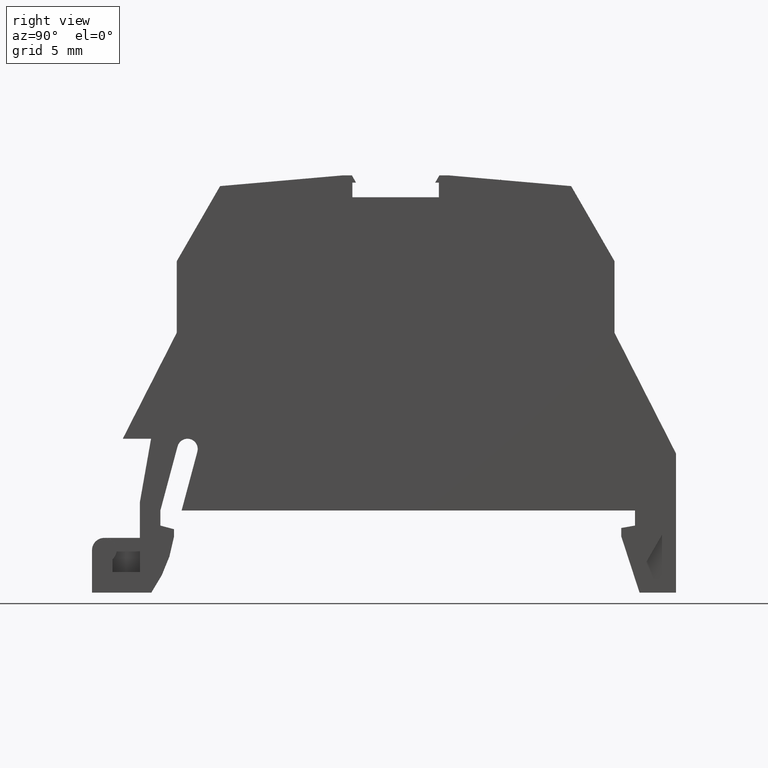
[diagram: clean part render]
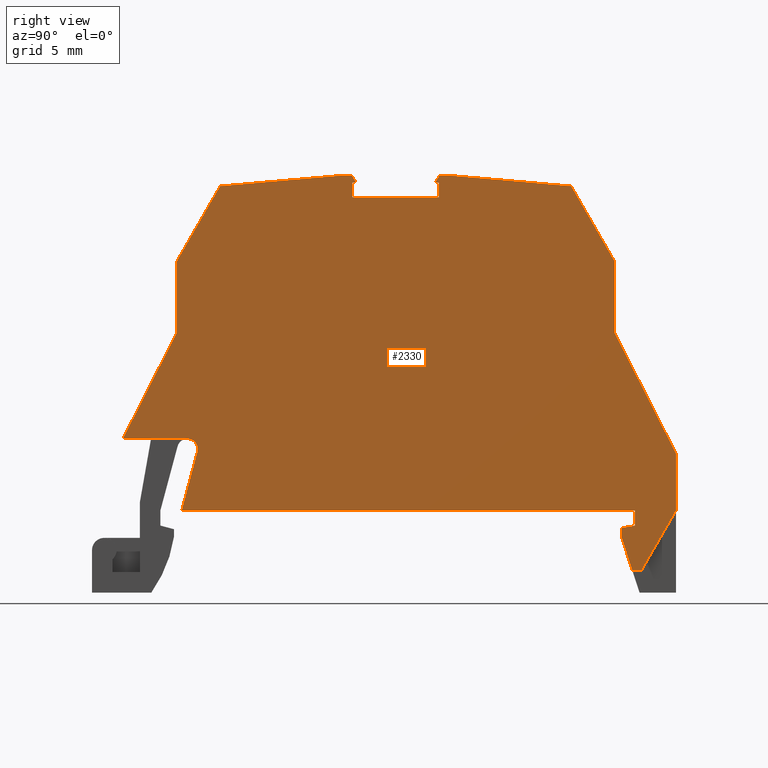
[diagram: same view with one face highlighted and labeled with its STEP entity id]
A machine part, right view. The second image highlights one B-rep face of the part: STEP entity #2330.
In plain terms, the highlighted planar face has unit normal (1, -0, 0).
Its self-contained STEP definition (entity closure, byte-faithful):
#10=CARTESIAN_POINT('',(62.0155351510105,116.281341430532,
-0.400000000000006));
#20=DIRECTION('',(1.1890976636385E-18,1.52197560301105E-18,-1.));
#30=DIRECTION('',(-0.500000000001421,-0.866025403783619,
-1.9126183679674E-18));
#40=AXIS2_PLACEMENT_3D('',#10,#20,#30);
#50=PLANE('',#40);
#60=CARTESIAN_POINT('',(58.5437800777709,117.723944849771,
-0.400000000000008));
#70=DIRECTION('',(-0.544639035014093,0.838670567946031,
-4.85003940823581E-17));
#80=VECTOR('',#70,1.);
#90=LINE('',#60,#80);
#100=CARTESIAN_POINT('',(71.8348388227303,97.2575091563567,
-0.400000000000007));
#110=VERTEX_POINT('',#100);
#120=CARTESIAN_POINT('',(66.4363213230057,105.570497110753,
-0.400000000000008));
#130=VERTEX_POINT('',#120);
#140=EDGE_CURVE('',#110,#130,#90,.T.);
#150=ORIENTED_EDGE('',*,*,#140,.T.);
#160=CARTESIAN_POINT('',(79.6226566744918,92.7612104232403,
-0.400000000000007));
#170=DIRECTION('',(-0.866025403784337,0.500000000000177,
-5.44332648143389E-17));
#180=VECTOR('',#170,1.);
#190=LINE('',#160,#180);
#200=CARTESIAN_POINT('',(75.4446515722179,95.1733827937149,
-0.400000000017126));
#210=VERTEX_POINT('',#200);
#220=EDGE_CURVE('',#210,#110,#190,.T.);
#230=ORIENTED_EDGE('',*,*,#220,.T.);
#240=CARTESIAN_POINT('',(79.6226566744953,95.1733827937145,
-0.400000000000009));
#250=DIRECTION('',(1.,-1.03694830499875E-13,4.71405901402262E-17));
#260=VECTOR('',#250,1.);
#270=LINE('',#240,#260);
#280=CARTESIAN_POINT('',(80.5253339410894,95.1733827937144,
-0.400000000000009));
#290=VERTEX_POINT('',#280);
#300=EDGE_CURVE('',#210,#290,#270,.T.);
#310=ORIENTED_EDGE('',*,*,#300,.F.);
#320=CARTESIAN_POINT('',(93.5449070145398,117.723944849781,
-0.400000000000009));
#330=DIRECTION('',(0.500000000000091,0.866025403784387,
1.36226417570353E-28));
#340=VECTOR('',#330,1.);
#350=LINE('',#320,#340);
#360=CARTESIAN_POINT('',(80.8490137285799,95.7340126310308,
-0.400000000015457));
#370=VERTEX_POINT('',#360);
#380=EDGE_CURVE('',#290,#370,#350,.T.);
#390=ORIENTED_EDGE('',*,*,#380,.F.);
#400=CARTESIAN_POINT('',(61.0491898250008,117.723944849771,
-0.400000000000008));
#410=DIRECTION('',(-0.669130606358673,0.743144825477562,
-5.17691112048493E-17));
#420=VECTOR('',#410,1.);
#430=LINE('',#400,#420);
#440=CARTESIAN_POINT('',(79.090099839409,97.6874844088518,
-0.400000000000007));
#450=VERTEX_POINT('',#440);
#460=EDGE_CURVE('',#370,#450,#430,.T.);
#470=ORIENTED_EDGE('',*,*,#460,.F.);
#480=CARTESIAN_POINT('',(131.695003508284,67.3160291149172,
-0.400000000000004));
#490=DIRECTION('',(-0.866025403784331,0.500000000000187,
-5.44332648143389E-17));
#500=VECTOR('',#490,1.);
#510=LINE('',#480,#500);
#520=CARTESIAN_POINT('',(78.5499831610476,97.9993209184977,
-0.400000000000007));
#530=VERTEX_POINT('',#520);
#540=EDGE_CURVE('',#450,#530,#510,.T.);
#550=ORIENTED_EDGE('',*,*,#540,.F.);
#560=CARTESIAN_POINT('',(103.988118869212,128.315310537588,
-0.400000000000007));
#570=DIRECTION('',(-0.642787609686713,-0.766044443118832,
-9.45223723962128E-18));
#580=VECTOR('',#570,1.);
#590=LINE('',#560,#580);
#600=CARTESIAN_POINT('',(77.8972795163813,97.2214590050677,
-0.400000000000007));
#610=VERTEX_POINT('',#600);
#620=EDGE_CURVE('',#530,#610,#590,.T.);
#630=ORIENTED_EDGE('',*,*,#620,.F.);
#640=CARTESIAN_POINT('',(131.195003508284,66.4500037111336,
-0.400000000000004));
#650=DIRECTION('',(-0.866025403784337,0.500000000000177,
-5.44332648143389E-17));
#660=VECTOR('',#650,1.);
#670=LINE('',#640,#660);
#680=CARTESIAN_POINT('',(76.9446515722186,97.7714590050678,
-0.400000000000007));
#690=VERTEX_POINT('',#680);
#700=EDGE_CURVE('',#610,#690,#670,.T.);
#710=ORIENTED_EDGE('',*,*,#700,.F.);
#720=CARTESIAN_POINT('',(96.9313940747672,132.389512497262,
-0.400000000000007));
#730=DIRECTION('',(0.500000000000177,0.866025403784337,
1.50981898055093E-28));
#740=VECTOR('',#730,1.);
#750=LINE('',#720,#740);
#760=CARTESIAN_POINT('',(93.518194436917,126.477677308132,
-0.400000000000007));
#770=VERTEX_POINT('',#760);
#780=EDGE_CURVE('',#690,#770,#750,.T.);
#790=ORIENTED_EDGE('',*,*,#780,.F.);
#800=CARTESIAN_POINT('',(156.161105024771,109.692560004568,
-0.400000000000004));
#810=DIRECTION('',(-0.965925826289015,0.258819045102719,
-5.2578496293441E-17));
#820=VECTOR('',#810,1.);
#830=LINE('',#800,#820);
#840=CARTESIAN_POINT('',(89.2123087207439,127.631435908483,
-0.400000000000007));
#850=VERTEX_POINT('',#840);
#860=EDGE_CURVE('',#770,#850,#830,.T.);
#870=ORIENTED_EDGE('',*,*,#860,.F.);
#880=CARTESIAN_POINT('',(89.406423004571,128.355880278199,
-0.400000000000007));
#890=DIRECTION('',(-4.71405901402872E-17,2.72166324069553E-17,1.));
#900=DIRECTION('',(0.500000000000371,0.866025403784225,
1.63141030512244E-28));
#910=AXIS2_PLACEMENT_3D('',#880,#890,#900);
#920=CIRCLE('',#910,0.75);
#930=CARTESIAN_POINT('',(88.7908518453532,128.784333482108,
-0.400000000000009));
#940=VERTEX_POINT('',#930);
#950=EDGE_CURVE('',#940,#850,#920,.T.);
#960=ORIENTED_EDGE('',*,*,#950,.T.);
#970=CARTESIAN_POINT('',(90.3624947582234,131.506498858555,
-0.400000000000007));
#980=DIRECTION('',(0.5,0.866025403784439,1.3984408437789E-28));
#990=VECTOR('',#980,1.);
#1000=LINE('',#970,#990);
#1010=CARTESIAN_POINT('',(91.125425338593,132.827933386403,
-0.400000000000007));
#1020=VERTEX_POINT('',#1010);
#1030=EDGE_CURVE('',#940,#1020,#1000,.T.);
#1040=ORIENTED_EDGE('',*,*,#1030,.F.);
#1050=CARTESIAN_POINT('',(167.215997517429,128.840195474044,
-0.400000000000004));
#1060=DIRECTION('',(-0.998629534754513,0.0523359562441171,
-4.85003940825416E-17));
#1070=VECTOR('',#1060,1.);
#1080=LINE('',#1050,#1070);
#1090=CARTESIAN_POINT('',(82.4363213230552,133.283310031826,
-0.400000000000008));
#1100=VERTEX_POINT('',#1090);
#1110=EDGE_CURVE('',#1020,#1100,#1080,.T.);
#1120=ORIENTED_EDGE('',*,*,#1110,.F.);
#1130=CARTESIAN_POINT('',(79.6226566744847,134.907780074089,
-0.40000000000001));
#1140=DIRECTION('',(0.866025403784273,-0.500000000000287,
5.44332648143562E-17));
#1150=VECTOR('',#1140,1.);
#1160=LINE('',#1130,#1150);
#1170=CARTESIAN_POINT('',(77.9035663599237,135.900297329964,
-0.400000000000006));
#1180=VERTEX_POINT('',#1170);
#1190=EDGE_CURVE('',#1180,#1100,#1160,.T.);
#1200=ORIENTED_EDGE('',*,*,#1190,.T.);
#1210=CARTESIAN_POINT('',(79.6226566744921,135.900297329964,
-0.400000000000005));
#1220=DIRECTION('',(-1.,-4.34152713779667E-13,-1.55628921478194E-16));
#1230=VECTOR('',#1220,1.);
#1240=LINE('',#1210,#1230);
#1250=CARTESIAN_POINT('',(71.5706800120637,135.900297329961,
-0.400000000000007));
#1260=VERTEX_POINT('',#1250);
#1270=EDGE_CURVE('',#1180,#1260,#1240,.T.);
#1280=ORIENTED_EDGE('',*,*,#1270,.F.);
#1290=CARTESIAN_POINT('',(58.843460988277,117.723944849772,
-0.400000000000007));
#1300=DIRECTION('',(0.573576436351071,0.819152044288975,
1.17737077065184E-48));
#1310=VECTOR('',#1300,1.);
#1320=LINE('',#1290,#1310);
#1330=CARTESIAN_POINT('',(66.4270291794981,128.554402646084,
-0.400000000000007));
#1340=VERTEX_POINT('',#1330);
#1350=EDGE_CURVE('',#1340,#1260,#1320,.T.);
#1360=ORIENTED_EDGE('',*,*,#1350,.T.);
#1370=CARTESIAN_POINT('',(60.1740614553684,117.723944849772,
-0.400000000000006));
#1380=DIRECTION('',(0.499999999999921,0.866025403784484,
-5.55111512312578E-17));
#1390=VECTOR('',#1380,1.);
#1400=LINE('',#1370,#1390);
#1410=CARTESIAN_POINT('',(66.0751231902687,127.944883593222,
-0.400000000000007));
#1420=VERTEX_POINT('',#1410);
#1430=EDGE_CURVE('',#1420,#1340,#1400,.T.);
#1440=ORIENTED_EDGE('',*,*,#1430,.T.);
#1450=CARTESIAN_POINT('',(71.9761849252626,117.723944849775,
-0.40000000000001));
#1460=DIRECTION('',(0.500000000005994,-0.866025403780978,
4.71405901402813E-17));
#1470=VECTOR('',#1460,1.);
#1480=LINE('',#1450,#1470);
#1490=CARTESIAN_POINT('',(66.3811188329434,127.414883593223,
-0.40000000000001));
#1500=VERTEX_POINT('',#1490);
#1510=EDGE_CURVE('',#1420,#1500,#1480,.T.);
#1520=ORIENTED_EDGE('',*,*,#1510,.F.);
#1530=CARTESIAN_POINT('',(60.7860527407171,117.723944849772,
-0.40000000000001));
#1540=DIRECTION('',(0.499999999999651,0.866025403784641,
1.08576226544775E-28));
#1550=VECTOR('',#1540,1.);
#1560=LINE('',#1530,#1550);
#1570=CARTESIAN_POINT('',(66.5172726435095,127.650708910768,
-0.39999999999997));
#1580=VERTEX_POINT('',#1570);
#1590=EDGE_CURVE('',#1500,#1580,#1560,.T.);
#1600=ORIENTED_EDGE('',*,*,#1590,.F.);
#1610=CARTESIAN_POINT('',(79.6226566744921,120.084311912645,
-0.399999999999967));
#1620=DIRECTION('',(0.866025403784394,-0.500000000000078,
1.94289029309402E-16));
#1630=VECTOR('',#1620,1.);
#1640=LINE('',#1610,#1630);
#1650=CARTESIAN_POINT('',(67.4439198255584,127.115708910768,
-0.39999999999997));
#1660=VERTEX_POINT('',#1650);
#1670=EDGE_CURVE('',#1580,#1660,#1640,.T.);
#1680=ORIENTED_EDGE('',*,*,#1670,.F.);
#1690=CARTESIAN_POINT('',(62.0215823167739,117.723944849772,
-0.40000000000001));
#1700=DIRECTION('',(-0.500000000000234,-0.866025403784304,
-1.45258258637552E-28));
#1710=VECTOR('',#1700,1.);
#1720=LINE('',#1690,#1710);
#1730=CARTESIAN_POINT('',(64.2814198255548,121.638098231828,
-0.399999999999966));
#1740=VERTEX_POINT('',#1730);
#1750=EDGE_CURVE('',#1660,#1740,#1720,.T.);
#1760=ORIENTED_EDGE('',*,*,#1750,.F.);
#1770=CARTESIAN_POINT('',(79.6226566744921,112.780831007381,
-0.399999999999966));
#1780=DIRECTION('',(0.866025403784152,-0.500000000000496,
1.77767588142922E-48));
#1790=VECTOR('',#1780,1.);
#1800=LINE('',#1770,#1790);
#1810=CARTESIAN_POINT('',(63.3547726435057,122.173098231829,
-0.399999999999966));
#1820=VERTEX_POINT('',#1810);
#1830=EDGE_CURVE('',#1820,#1740,#1800,.T.);
#1840=ORIENTED_EDGE('',*,*,#1830,.T.);
#1850=CARTESIAN_POINT('',(60.786052740703,117.723944849772,
-0.40000000000001));
#1860=DIRECTION('',(0.500000000000923,0.866025403783906,
1.88553163787377E-28));
#1870=VECTOR('',#1860,1.);
#1880=LINE('',#1850,#1870);
#1890=CARTESIAN_POINT('',(63.4909264540723,122.408923549374,
-0.40000000000001));
#1900=VERTEX_POINT('',#1890);
#1910=EDGE_CURVE('',#1820,#1900,#1880,.T.);
#1920=ORIENTED_EDGE('',*,*,#1910,.F.);
#1930=CARTESIAN_POINT('',(79.6226566744881,122.408923549251,
-0.400000000000009));
#1940=DIRECTION('',(-1.,7.58376694776075E-12,-4.71405901404298E-17));
#1950=VECTOR('',#1940,1.);
#1960=LINE('',#1930,#1950);
#1970=CARTESIAN_POINT('',(62.8789351687292,122.408923549378,
-0.400000000000007));
#1980=VERTEX_POINT('',#1970);
#1990=EDGE_CURVE('',#1900,#1980,#1960,.T.);
#2000=ORIENTED_EDGE('',*,*,#1990,.F.);
#2010=CARTESIAN_POINT('',(60.17406145536,117.723944849772,
-0.400000000000006));
#2020=DIRECTION('',(-0.500000000000653,-0.866025403784062,
2.77555756156289E-17));
#2030=VECTOR('',#2020,1.);
#2040=LINE('',#2010,#2030);
#2050=CARTESIAN_POINT('',(62.527029179499,121.799404496545,
-0.400000000000006));
#2060=VERTEX_POINT('',#2050);
#2070=EDGE_CURVE('',#1980,#2060,#2040,.T.);
#2080=ORIENTED_EDGE('',*,*,#2070,.F.);
#2090=CARTESIAN_POINT('',(60.6266111357032,117.723944849772,
-0.400000000000006));
#2100=DIRECTION('',(-0.422618261741383,-0.906307787036331,
-8.67501447031967E-49));
#2110=VECTOR('',#2100,1.);
#2120=LINE('',#2090,#2110);
#2130=CARTESIAN_POINT('',(58.7371231859892,113.671924865398,
-0.400000000000006));
#2140=VERTEX_POINT('',#2130);
#2150=EDGE_CURVE('',#2060,#2140,#2120,.T.);
#2160=ORIENTED_EDGE('',*,*,#2150,.F.);
#2170=CARTESIAN_POINT('',(56.3976883572584,117.723944849772,
-0.400000000000007));
#2180=DIRECTION('',(-0.499999999999624,0.866025403784656,
-1.66533453693773E-16));
#2190=VECTOR('',#2180,1.);
#2200=LINE('',#2170,#2190);
#2210=CARTESIAN_POINT('',(61.9035663599217,108.187484408873,
-0.400000000000005));
#2220=VERTEX_POINT('',#2210);
#2230=EDGE_CURVE('',#2220,#2140,#2200,.T.);
#2240=ORIENTED_EDGE('',*,*,#2230,.T.);
#2250=CARTESIAN_POINT('',(79.6226566744946,97.9573628459404,
-0.400000000000009));
#2260=DIRECTION('',(0.866025403784273,-0.500000000000287,
5.44332648143563E-17));
#2270=VECTOR('',#2260,1.);
#2280=LINE('',#2250,#2270);
#2290=EDGE_CURVE('',#2220,#130,#2280,.T.);
#2300=ORIENTED_EDGE('',*,*,#2290,.F.);
#2310=EDGE_LOOP('',(#2300,#2240,#2160,#2080,#2000,#1920,#1840,#1760,
#1680,#1600,#1520,#1440,#1360,#1280,#1200,#1120,#1040,#960,#870,#790,
#710,#630,#550,#470,#390,#310,#230,#150));
#2320=FACE_OUTER_BOUND('',#2310,.T.);
#2330=ADVANCED_FACE('',(#2320),#50,.T.);